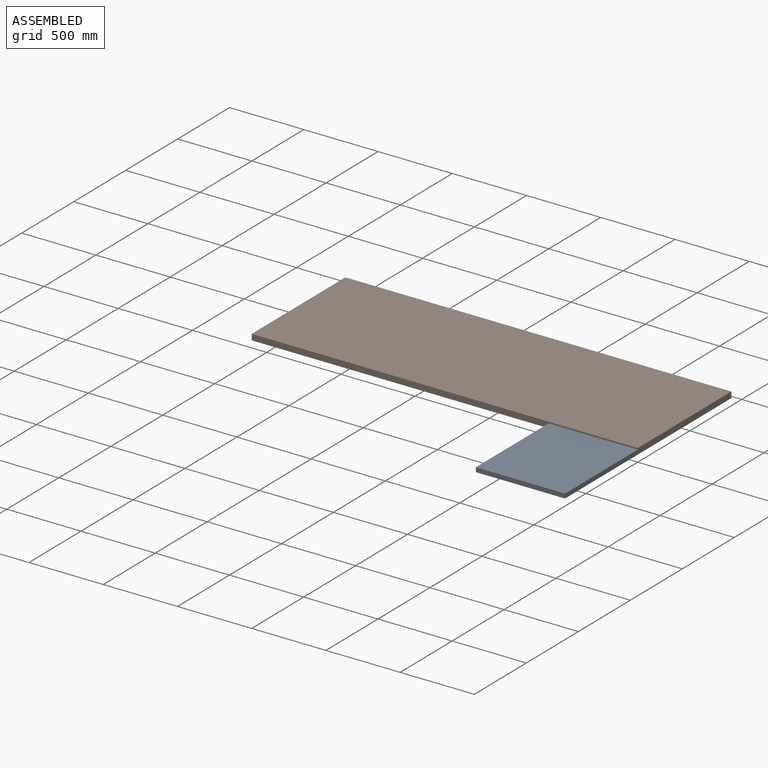
[diagram: assembled view]
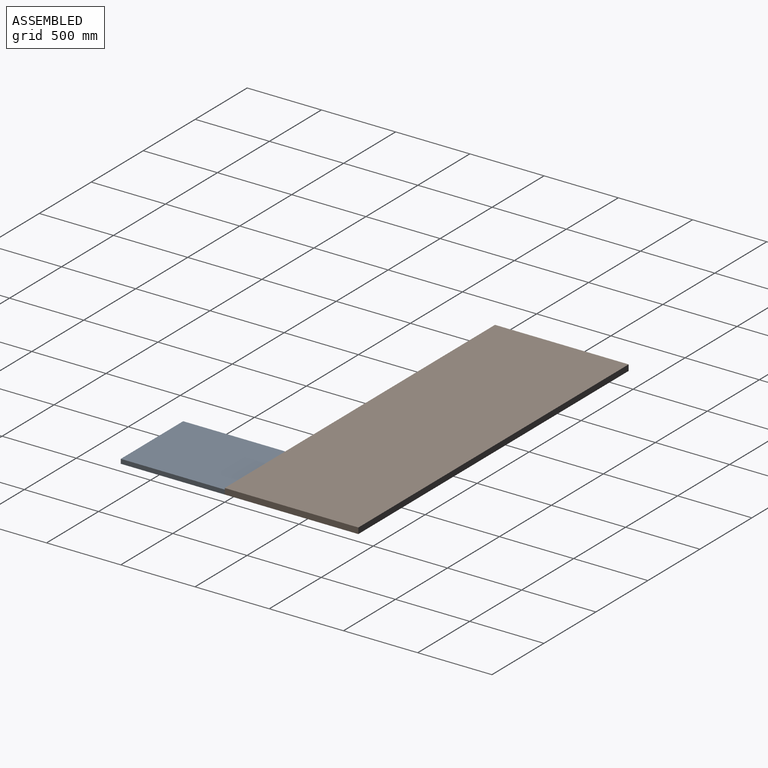
[diagram: assembled view, second angle]
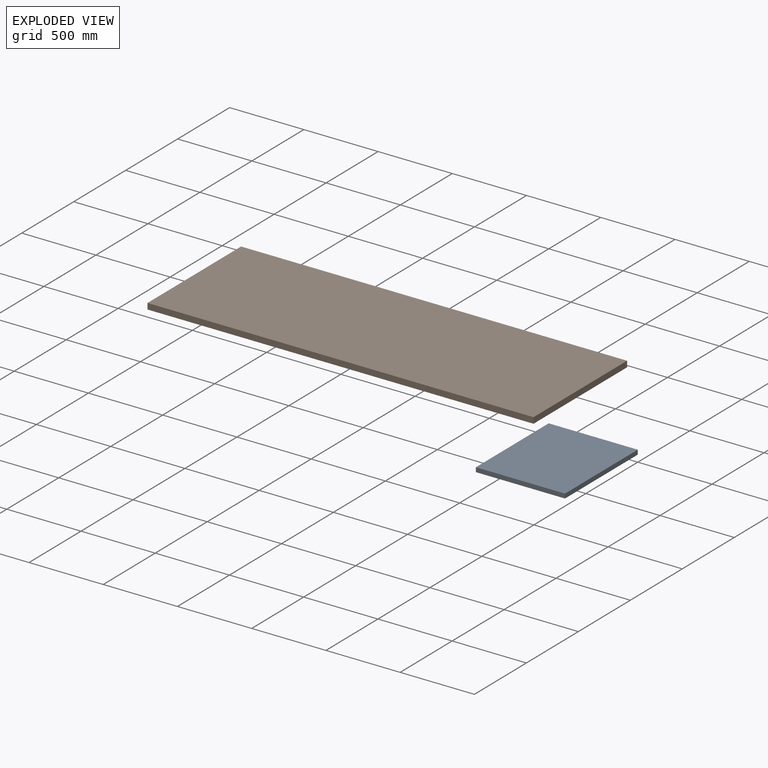
[diagram: exploded view]
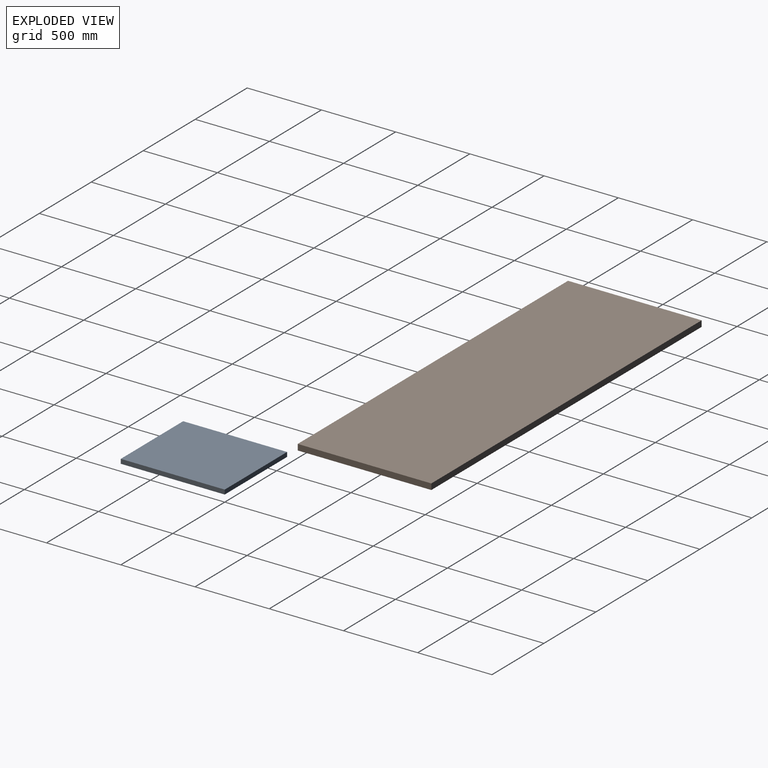
[diagram: exploded view, second angle]
ASSEMBLY  parts=2 mates=3
PART A: 6 faces, bbox 600x700x30 mm
  f0: plane 700x30mm, normal (1,0,0), area 21000mm2, adj f1,f3,f4,f5
  f1: plane 600x30mm, normal (0,1,0), area 18000mm2, adj f0,f2,f4,f5
  f2: plane 700x30mm, normal (-1,0,0), area 21000mm2, adj f1,f3,f4,f5
  f3: plane 600x30mm, normal (0,-1,0), area 18000mm2, adj f0,f2,f4,f5
  f4: plane 700x600mm, normal (0,0,1), area 420000mm2, adj f0,f1,f2,f3
  f5: plane 700x600mm, normal (0,0,-1), area 420000mm2, adj f0,f1,f2,f3
PART B: 6 faces, bbox 2600x900x40 mm
  f0: plane 2600x40mm, normal (0,-1,0), area 104000mm2, adj f1,f3,f4,f5
  f1: plane 900x40mm, normal (1,0,0), area 36000mm2, adj f0,f2,f4,f5
  f2: plane 2600x40mm, normal (0,1,0), area 104000mm2, adj f1,f3,f4,f5
  f3: plane 900x40mm, normal (-1,0,0), area 36000mm2, adj f0,f2,f4,f5
  f4: plane 2600x900mm, normal (0,0,1), area 2340000mm2, adj f0,f1,f2,f3
  f5: plane 2600x900mm, normal (0,0,-1), area 2340000mm2, adj f0,f1,f2,f3
PLACE A at identity
PLACE B at identity fixed
MATE planar A.f0 <-> B.f1  axis (1,0,0) through (0,-350,15)mm
MATE planar A.f1 <-> B.f0  axis (0,1,0) through (-300,0,15)mm
MATE planar A.f5 <-> B.f5  axis (0,0,-1) through (-300,-350,0)mm
